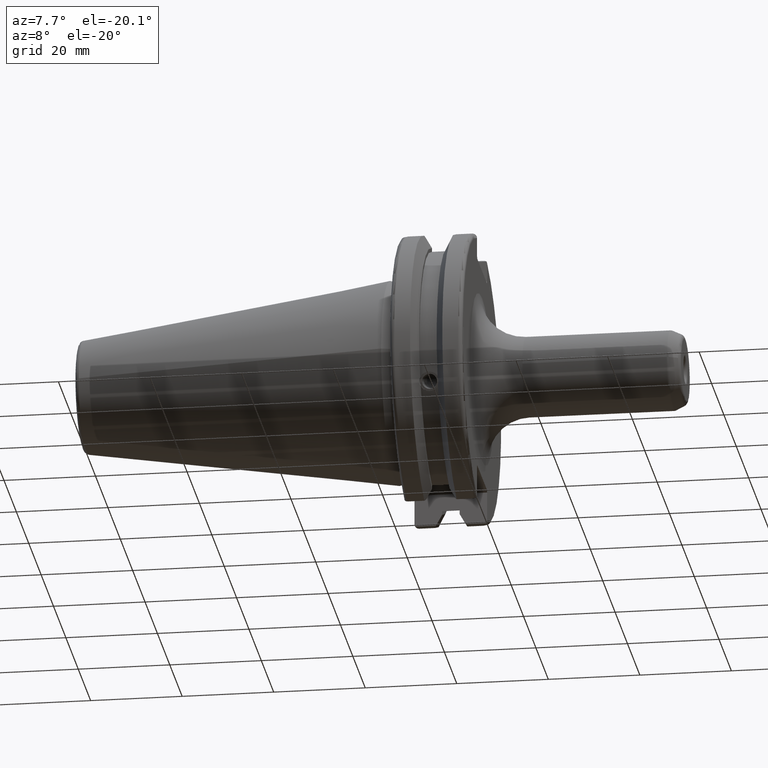
[diagram: clean part render]
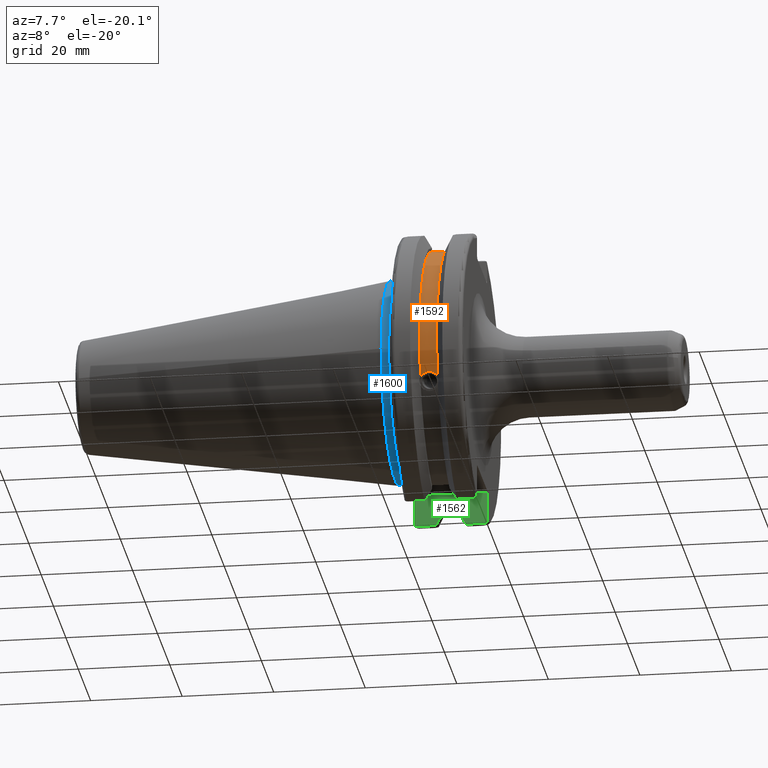
[diagram: same view with three faces highlighted in distinct colors, each labeled with its STEP entity id]
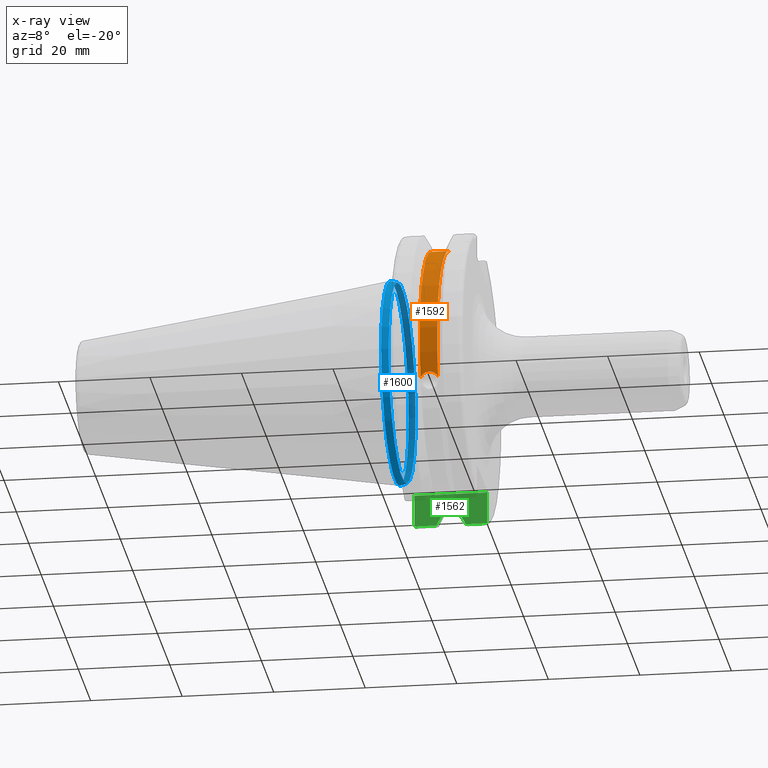
[diagram: x-ray of the same camera — body ghosted, the three highlighted faces saturated]
A machine part, auxiliary view with three faces highlighted in distinct colors.
The next image is the same camera in x-ray (body ghosted, the three faces saturated) — at least one of them is partly hidden behind the body in this view.
Their STEP definitions:

[orange] entity #1592 — the highlighted cylindrical surface (partial cylindrical patch) has radius 28.15 mm, axis along (1, 0, 0).
#72=B_SPLINE_CURVE_WITH_KNOTS('',3,(#2560,#2561,#2562,#2563,#2564,#2565,
#2566,#2567,#2568,#2569,#2570,#2571,#2572,#2573),.UNSPECIFIED.,.F.,.F.,
(4,2,2,2,2,2,4),(0.401639126382404,0.474814416953736,0.553950208498303,
0.63308600004287,0.712221791587437,0.791357583132004,0.864532873703336),
 .UNSPECIFIED.);
#162=LINE('',#2964,#256);
#256=VECTOR('',#2123,10.);
#311=CYLINDRICAL_SURFACE('',#1791,28.15);
#440=FACE_OUTER_BOUND('',#541,.T.);
#541=EDGE_LOOP('',(#1454,#1455,#1456,#1457));
#625=CIRCLE('',#1792,28.15);
#626=CIRCLE('',#1793,28.15);
#681=VERTEX_POINT('',#2557);
#682=VERTEX_POINT('',#2559);
#763=VERTEX_POINT('',#2961);
#764=VERTEX_POINT('',#2963);
#857=EDGE_CURVE('',#682,#681,#72,.T.);
#968=EDGE_CURVE('',#764,#763,#162,.T.);
#1019=EDGE_CURVE('',#764,#681,#625,.T.);
#1020=EDGE_CURVE('',#763,#682,#626,.T.);
#1454=ORIENTED_EDGE('',*,*,#857,.T.);
#1455=ORIENTED_EDGE('',*,*,#1019,.F.);
#1456=ORIENTED_EDGE('',*,*,#968,.T.);
#1457=ORIENTED_EDGE('',*,*,#1020,.T.);
#1592=ADVANCED_FACE('',(#440),#311,.T.);
#1791=AXIS2_PLACEMENT_3D('',#3112,#2231,#2232);
#1792=AXIS2_PLACEMENT_3D('',#3113,#2233,#2234);
#1793=AXIS2_PLACEMENT_3D('',#3114,#2235,#2236);
#2123=DIRECTION('',(-1.,0.,0.));
#2231=DIRECTION('center_axis',(1.,0.,0.));
#2232=DIRECTION('ref_axis',(0.,-0.887654187951484,0.46051063246378));
#2233=DIRECTION('center_axis',(1.,0.,0.));
#2234=DIRECTION('ref_axis',(0.,0.,-1.));
#2235=DIRECTION('center_axis',(1.,0.,0.));
#2236=DIRECTION('ref_axis',(0.,0.,-1.));
#2557=CARTESIAN_POINT('',(13.0491,-26.734714844398,-8.81348524641211));
#2559=CARTESIAN_POINT('',(9.2191,-26.734714844398,-8.81348524641212));
#2560=CARTESIAN_POINT('Ctrl Pts',(9.2191,-26.734714844398,-8.81348524641212));
#2561=CARTESIAN_POINT('Ctrl Pts',(9.32533057097183,-26.8086519721597,-8.58920529678291));
#2562=CARTESIAN_POINT('Ctrl Pts',(9.47682013770509,-26.8729987454904,-8.38416529997369));
#2563=CARTESIAN_POINT('Ctrl Pts',(9.83557062657411,-26.9778908791383,-8.04056861831091));
#2564=CARTESIAN_POINT('Ctrl Pts',(10.0716450112988,-27.0233016799732,-7.88512567185902));
#2565=CARTESIAN_POINT('Ctrl Pts',(10.5890125426388,-27.0826966800569,-7.6786444840004));
#2566=CARTESIAN_POINT('Ctrl Pts',(10.8703140281848,-27.0968804077294,-7.62768458768512));
#2567=CARTESIAN_POINT('Ctrl Pts',(11.3978859718152,-27.0968804077294,-7.62768458768512));
#2568=CARTESIAN_POINT('Ctrl Pts',(11.6791874573612,-27.0826966800569,-7.6786444840004));
#2569=CARTESIAN_POINT('Ctrl Pts',(12.1965549887012,-27.0233016799732,-7.88512567185902));
#2570=CARTESIAN_POINT('Ctrl Pts',(12.4326293734259,-26.9778908791383,-8.04056861831091));
#2571=CARTESIAN_POINT('Ctrl Pts',(12.7913798622949,-26.8729987454904,-8.38416529997369));
#2572=CARTESIAN_POINT('Ctrl Pts',(12.9428694290282,-26.8086519721597,-8.58920529678291));
#2573=CARTESIAN_POINT('Ctrl Pts',(13.0491,-26.734714844398,-8.81348524641211));
#2961=CARTESIAN_POINT('',(9.2191,-8.19,26.932255754021));
#2963=CARTESIAN_POINT('',(13.0491,-8.19,26.932255754021));
#2964=CARTESIAN_POINT('',(11.1341,-8.19,26.932255754021));
#3112=CARTESIAN_POINT('Origin',(11.1341,0.,0.));
#3113=CARTESIAN_POINT('Origin',(13.0491,0.,0.));
#3114=CARTESIAN_POINT('Origin',(9.2191,0.,0.));

[blue] entity #1600 — the highlighted conical surface has half-angle 15 deg.
#61=CONICAL_SURFACE('',#1804,22.0125,0.261799387799148);
#190=LINE('',#3130,#284);
#284=VECTOR('',#2261,22.0125);
#448=FACE_OUTER_BOUND('',#551,.T.);
#551=EDGE_LOOP('',(#1490,#1491,#1492,#1493));
#608=CIRCLE('',#1742,21.8);
#619=CIRCLE('',#1768,22.225);
#748=VERTEX_POINT('',#2854);
#778=VERTEX_POINT('',#3057);
#945=EDGE_CURVE('',#748,#748,#608,.T.);
#994=EDGE_CURVE('',#778,#778,#619,.T.);
#1026=EDGE_CURVE('',#748,#778,#190,.T.);
#1490=ORIENTED_EDGE('',*,*,#945,.F.);
#1491=ORIENTED_EDGE('',*,*,#1026,.T.);
#1492=ORIENTED_EDGE('',*,*,#994,.T.);
#1493=ORIENTED_EDGE('',*,*,#1026,.F.);
#1600=ADVANCED_FACE('',(#448),#61,.T.);
#1742=AXIS2_PLACEMENT_3D('',#2856,#2100,#2101);
#1768=AXIS2_PLACEMENT_3D('',#3058,#2168,#2169);
#1804=AXIS2_PLACEMENT_3D('',#3129,#2259,#2260);
#2100=DIRECTION('center_axis',(1.,0.,0.));
#2101=DIRECTION('ref_axis',(0.,0.,-1.));
#2168=DIRECTION('center_axis',(1.,0.,0.));
#2169=DIRECTION('ref_axis',(0.,0.,-1.));
#2259=DIRECTION('center_axis',(-1.,0.,0.));
#2260=DIRECTION('ref_axis',(0.,1.,0.));
#2261=DIRECTION('',(-0.965925826289069,-0.258819045102519,-3.16961915143175E-17));
#2854=CARTESIAN_POINT('',(1.58612159321676,-21.8,-2.66973002214123E-15));
#2856=CARTESIAN_POINT('Origin',(1.58612159321676,0.,0.));
#3057=CARTESIAN_POINT('',(0.,-22.225,-2.72177751110499E-15));
#3058=CARTESIAN_POINT('Origin',(0.,0.,0.));
#3129=CARTESIAN_POINT('Origin',(0.793060796608382,0.,0.));
#3130=CARTESIAN_POINT('',(0.793060796608382,-22.0125,-2.69575376662311E-15));

[green] entity #1562 — the highlighted planar face has unit normal (-0, 1, 0).
#19=(
BOUNDED_CURVE()
B_SPLINE_CURVE(2,(#2776,#2777,#2778),.UNSPECIFIED.,.F.,.F.)
B_SPLINE_CURVE_WITH_KNOTS((3,3),(0.,0.276549142796136),.UNSPECIFIED.)
CURVE()
GEOMETRIC_REPRESENTATION_ITEM()
RATIONAL_B_SPLINE_CURVE((1.,1.00095203903316,1.00031614444813))
REPRESENTATION_ITEM('')
);
#24=(
BOUNDED_CURVE()
B_SPLINE_CURVE(2,(#2909,#2910,#2911),.UNSPECIFIED.,.F.,.F.)
B_SPLINE_CURVE_WITH_KNOTS((3,3),(0.0550586467393769,0.331607789535852),
 .UNSPECIFIED.)
CURVE()
GEOMETRIC_REPRESENTATION_ITEM()
RATIONAL_B_SPLINE_CURVE((1.00031614444922,1.00095203903643,1.))
REPRESENTATION_ITEM('')
);
#82=B_SPLINE_CURVE_WITH_KNOTS('',3,(#2866,#2867,#2868,#2869,#2870,#2871),
 .UNSPECIFIED.,.F.,.F.,(4,2,4),(0.452741154494497,0.491581665024871,0.505824174364157),
 .UNSPECIFIED.);
#85=B_SPLINE_CURVE_WITH_KNOTS('',3,(#2902,#2903,#2904,#2905,#2906,#2907),
 .UNSPECIFIED.,.F.,.F.,(4,2,4),(0.0977210450333169,0.111963554372601,0.150804064902975),
 .UNSPECIFIED.);
#109=LINE('',#2423,#203);
#138=LINE('',#2797,#232);
#139=LINE('',#2801,#233);
#140=LINE('',#2805,#234);
#149=LINE('',#2845,#243);
#155=LINE('',#2893,#249);
#157=LINE('',#2900,#251);
#158=LINE('',#2908,#252);
#203=VECTOR('',#1882,10.);
#232=VECTOR('',#2043,10.);
#233=VECTOR('',#2048,10.);
#234=VECTOR('',#2053,10.);
#243=VECTOR('',#2092,10.);
#249=VECTOR('',#2108,10.);
#251=VECTOR('',#2112,10.);
#252=VECTOR('',#2113,10.);
#341=PLANE('',#1746);
#410=FACE_OUTER_BOUND('',#510,.T.);
#510=EDGE_LOOP('',(#1297,#1298,#1299,#1300,#1301,#1302,#1303,#1304,#1305,
#1306,#1307,#1308));
#651=VERTEX_POINT('',#2401);
#661=VERTEX_POINT('',#2421);
#720=VERTEX_POINT('',#2773);
#721=VERTEX_POINT('',#2775);
#726=VERTEX_POINT('',#2795);
#727=VERTEX_POINT('',#2799);
#728=VERTEX_POINT('',#2803);
#743=VERTEX_POINT('',#2842);
#744=VERTEX_POINT('',#2844);
#750=VERTEX_POINT('',#2865);
#753=VERTEX_POINT('',#2892);
#755=VERTEX_POINT('',#2901);
#826=EDGE_CURVE('',#661,#651,#109,.T.);
#910=EDGE_CURVE('',#720,#721,#19,.T.);
#917=EDGE_CURVE('',#726,#720,#138,.T.);
#919=EDGE_CURVE('',#727,#726,#139,.T.);
#921=EDGE_CURVE('',#728,#727,#140,.T.);
#939=EDGE_CURVE('',#743,#744,#149,.T.);
#947=EDGE_CURVE('',#651,#750,#82,.T.);
#951=EDGE_CURVE('',#750,#753,#155,.T.);
#954=EDGE_CURVE('',#744,#661,#157,.T.);
#955=EDGE_CURVE('',#755,#743,#85,.T.);
#956=EDGE_CURVE('',#721,#755,#158,.T.);
#957=EDGE_CURVE('',#753,#728,#24,.T.);
#1297=ORIENTED_EDGE('',*,*,#947,.F.);
#1298=ORIENTED_EDGE('',*,*,#826,.F.);
#1299=ORIENTED_EDGE('',*,*,#954,.F.);
#1300=ORIENTED_EDGE('',*,*,#939,.F.);
#1301=ORIENTED_EDGE('',*,*,#955,.F.);
#1302=ORIENTED_EDGE('',*,*,#956,.F.);
#1303=ORIENTED_EDGE('',*,*,#910,.F.);
#1304=ORIENTED_EDGE('',*,*,#917,.F.);
#1305=ORIENTED_EDGE('',*,*,#919,.F.);
#1306=ORIENTED_EDGE('',*,*,#921,.F.);
#1307=ORIENTED_EDGE('',*,*,#957,.F.);
#1308=ORIENTED_EDGE('',*,*,#951,.F.);
#1562=ADVANCED_FACE('',(#410),#341,.F.);
#1746=AXIS2_PLACEMENT_3D('',#2899,#2110,#2111);
#1882=DIRECTION('',(0.,0.,-1.));
#2043=DIRECTION('',(0.,0.,-1.));
#2048=DIRECTION('',(-1.,0.,0.));
#2053=DIRECTION('',(0.,0.,1.));
#2092=DIRECTION('',(0.,0.,1.));
#2108=DIRECTION('',(-1.,-1.31581988103722E-16,0.));
#2110=DIRECTION('center_axis',(-1.31581988103722E-16,1.,0.));
#2111=DIRECTION('ref_axis',(1.,1.31581988103722E-16,0.));
#2112=DIRECTION('',(1.,1.31581988103722E-16,0.));
#2113=DIRECTION('',(-1.,-1.31581988103722E-16,0.));
#2401=CARTESIAN_POINT('',(19.05,8.19,-29.6392712461019));
#2421=CARTESIAN_POINT('',(19.05,8.19,-23.1));
#2423=CARTESIAN_POINT('',(19.05,8.19,-11.3));
#2773=CARTESIAN_POINT('',(9.2191,8.19,-27.7771386827498));
#2775=CARTESIAN_POINT('',(7.88668530351257,8.19,-30.1755016258903));
#2776=CARTESIAN_POINT('Ctrl Pts',(9.2191,8.19,-27.7771386827498));
#2777=CARTESIAN_POINT('Ctrl Pts',(8.58046356152393,8.19,-28.9303689539705));
#2778=CARTESIAN_POINT('Ctrl Pts',(7.88668530351257,8.19,-30.1755016258903));
#2795=CARTESIAN_POINT('',(9.2191,8.19,-26.932255754021));
#2797=CARTESIAN_POINT('',(9.2191,8.18999999999999,-11.3));
#2799=CARTESIAN_POINT('',(13.0491,8.19,-26.932255754021));
#2801=CARTESIAN_POINT('',(11.1341,8.19,-26.932255754021));
#2803=CARTESIAN_POINT('',(13.0491,8.19,-27.7771386827498));
#2805=CARTESIAN_POINT('',(13.0491,8.19,-11.3));
#2842=CARTESIAN_POINT('',(3.175,8.18999999999999,-29.6392712461019));
#2844=CARTESIAN_POINT('',(3.175,8.18999999999999,-23.1));
#2845=CARTESIAN_POINT('',(3.175,8.18999999999999,-11.3));
#2865=CARTESIAN_POINT('',(18.9058722749097,8.19,-30.1755016258903));
#2866=CARTESIAN_POINT('Ctrl Pts',(19.05,8.19,-29.6392712461019));
#2867=CARTESIAN_POINT('Ctrl Pts',(19.05,8.19,-29.7687396145364));
#2868=CARTESIAN_POINT('Ctrl Pts',(19.0204855670831,8.19,-29.9212724384851));
#2869=CARTESIAN_POINT('Ctrl Pts',(18.9539643471756,8.19,-30.0852355256475));
#2870=CARTESIAN_POINT('Ctrl Pts',(18.9318163728133,8.19,-30.131014531546));
#2871=CARTESIAN_POINT('Ctrl Pts',(18.9058722749097,8.19,-30.1755016258903));
#2892=CARTESIAN_POINT('',(14.3815146964874,8.19,-30.1755016258903));
#2893=CARTESIAN_POINT('',(16.8551333845378,8.19,-30.1755016258903));
#2899=CARTESIAN_POINT('Origin',(3.175,8.19,-22.6));
#2900=CARTESIAN_POINT('',(9.44125,8.19,-23.1));
#2901=CARTESIAN_POINT('',(3.31912772509028,8.19,-30.1755016258903));
#2902=CARTESIAN_POINT('Ctrl Pts',(3.31912772509028,8.19,-30.1755016258903));
#2903=CARTESIAN_POINT('Ctrl Pts',(3.29318362718666,8.19,-30.131014531546));
#2904=CARTESIAN_POINT('Ctrl Pts',(3.27103565282437,8.19,-30.0852355256475));
#2905=CARTESIAN_POINT('Ctrl Pts',(3.20451443291695,8.19,-29.9212724384851));
#2906=CARTESIAN_POINT('Ctrl Pts',(3.175,8.19,-29.7687396145364));
#2907=CARTESIAN_POINT('Ctrl Pts',(3.175,8.19,-29.6392712461019));
#2908=CARTESIAN_POINT('',(5.39146661546218,8.19,-30.1755016258903));
#2909=CARTESIAN_POINT('Ctrl Pts',(14.3815146964874,8.18999999999999,-30.1755016258903));
#2910=CARTESIAN_POINT('Ctrl Pts',(13.687736438474,8.19,-28.9303689539668));
#2911=CARTESIAN_POINT('Ctrl Pts',(13.0491,8.19,-27.7771386827498));